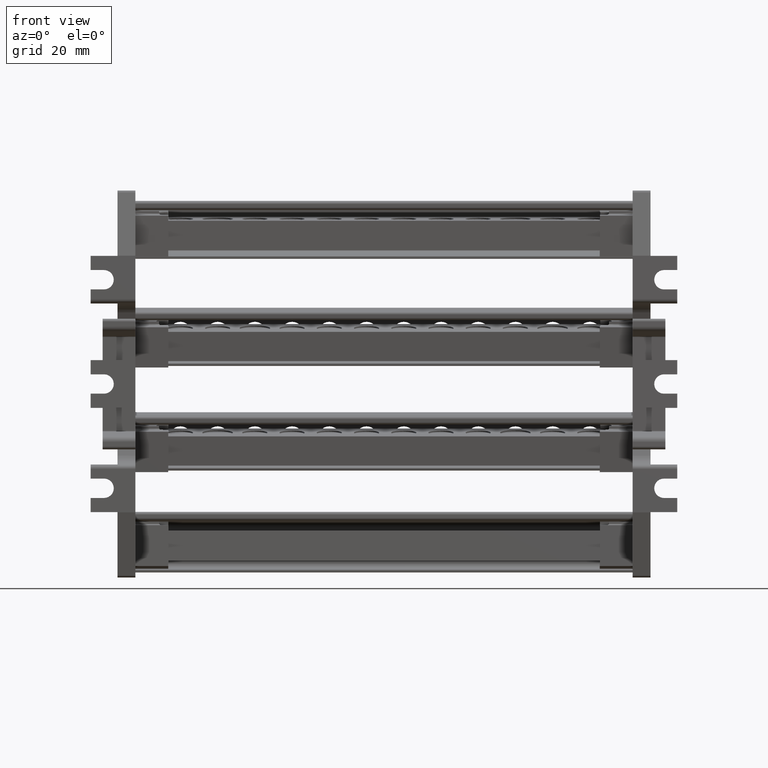
[diagram: clean part render]
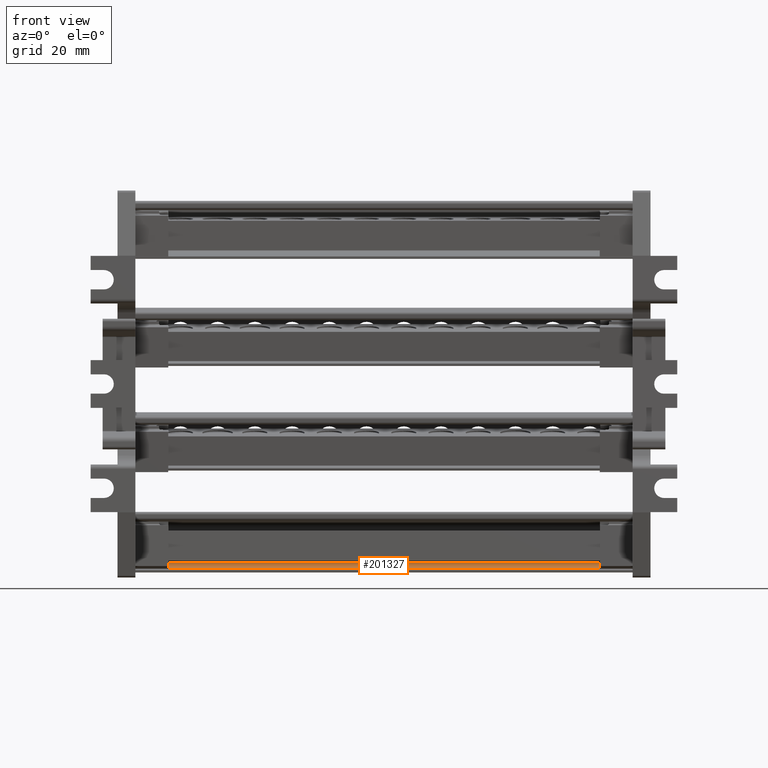
[diagram: same view with one face highlighted and labeled with its STEP entity id]
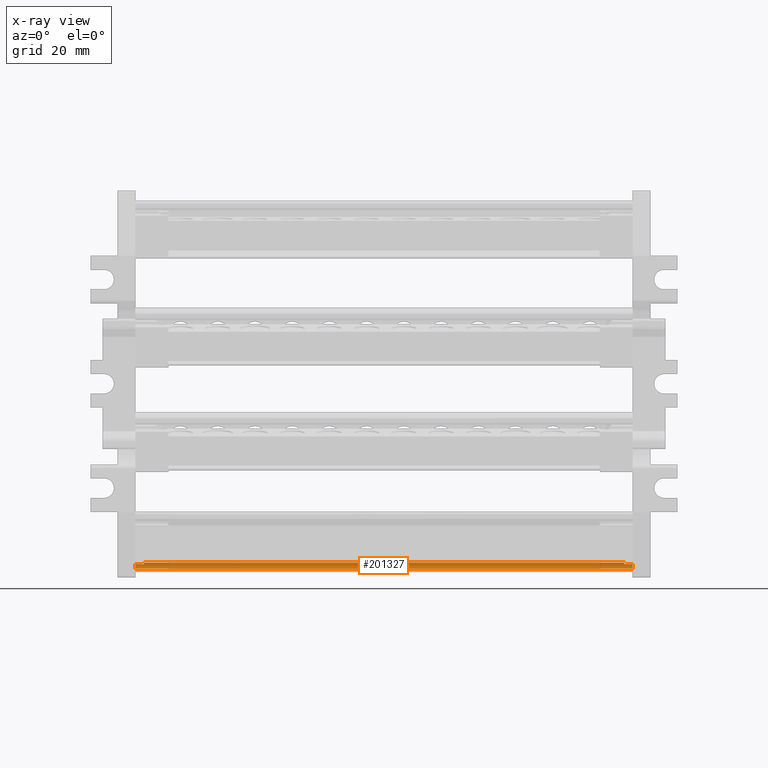
[diagram: x-ray of the same camera — body ghosted, the highlighted face saturated]
A machine part, front view. The second image highlights one B-rep face of the part: STEP entity #201327.
The next image is the same camera in x-ray: the body ghosted, the highlighted face saturated — about 7% of this face is hidden behind the body in this view.
In plain terms, the highlighted cylindrical surface (edge-blend (fillet) strip) has radius 2 mm, axis along (-1, 0, 0).
Its self-contained STEP definition (entity closure, byte-faithful):
#19030 = CARTESIAN_POINT ( 'NONE',  ( -1413.910428931362000, 747.0874281241202700, 2238.399273915222700 ) ) ;
#24715 = VECTOR ( 'NONE', #90162, 1000.000000000000000 ) ;
#28873 = B_SPLINE_CURVE_WITH_KNOTS ( 'NONE', 3,
 ( #90265, #90290, #90244, #90268, #90269, #90277, #90270, #90248, #90279, #90288, #90252, #90280, #90283, #90284, #90261, #90266, #90285, #90291 ),
 .UNSPECIFIED., .F., .F.,
 ( 4, 1, 1, 2, 2, 2, 1, 1, 2, 2, 4 ),
 ( 0.0000000000000000000, 0.1250000000002905200, 0.1875000000003716700, 0.2187500000004750400, 0.2500000000005783700, 0.5000000000011544100, 0.6250000000016424600, 0.6875000000017016400, 0.7187500000014975800, 0.7500000000012935200, 1.000000000000000000 ),
 .UNSPECIFIED. ) ;
#30984 = ORIENTED_EDGE ( 'NONE', *, *, #123603, .F. ) ;
#30988 = ORIENTED_EDGE ( 'NONE', *, *, #117079, .T. ) ;
#31032 = ORIENTED_EDGE ( 'NONE', *, *, #132460, .F. ) ;
#33439 = ORIENTED_EDGE ( 'NONE', *, *, #123554, .F. ) ;
#33445 = ORIENTED_EDGE ( 'NONE', *, *, #134063, .F. ) ;
#33453 = ORIENTED_EDGE ( 'NONE', *, *, #133993, .T. ) ;
#33470 = ORIENTED_EDGE ( 'NONE', *, *, #124579, .F. ) ;
#33499 = ORIENTED_EDGE ( 'NONE', *, *, #117049, .T. ) ;
#37427 = CARTESIAN_POINT ( 'NONE',  ( -1246.910428931360000, 746.1663795030019600, 2237.135086144463900 ) ) ;
#37435 = CARTESIAN_POINT ( 'NONE',  ( -1246.910428931360000, 746.8970117616252100, 2237.901322745360600 ) ) ;
#37438 = CARTESIAN_POINT ( 'NONE',  ( -1246.910428931360000, 746.8706784317532800, 2237.854589273246300 ) ) ;
#37441 = CARTESIAN_POINT ( 'NONE',  ( -1246.910428931359800, 745.8305968602391000, 2236.981490364456000 ) ) ;
#37444 = CARTESIAN_POINT ( 'NONE',  ( -1246.910428931360200, 745.9116811272579100, 2237.013212161851200 ) ) ;
#37448 = CARTESIAN_POINT ( 'NONE',  ( -1246.910428931360200, 745.3922792874884600, 2236.863218074026000 ) ) ;
#37475 = CARTESIAN_POINT ( 'NONE',  ( -1246.910428931360200, 745.6020503011453700, 2236.900955235959800 ) ) ;
#37482 = CARTESIAN_POINT ( 'NONE',  ( -1246.910428931360000, 746.5734116341029700, 2237.444802232160800 ) ) ;
#37486 = CARTESIAN_POINT ( 'NONE',  ( -1246.910428931360000, 745.9899720404166600, 2237.046469127890800 ) ) ;
#37569 = CARTESIAN_POINT ( 'NONE',  ( -1246.910428931359800, 745.8588899151723100, 2236.992090130123900 ) ) ;
#37576 = CARTESIAN_POINT ( 'NONE',  ( -1246.910428931360000, 746.9350236556941800, 2237.972047779016500 ) ) ;
#37578 = CARTESIAN_POINT ( 'NONE',  ( -1246.910428931359800, 746.7230075337976100, 2237.614214111989900 ) ) ;
#37582 = CARTESIAN_POINT ( 'NONE',  ( -1246.910428931359800, 746.3068350398718800, 2237.229930608632500 ) ) ;
#37586 = CARTESIAN_POINT ( 'NONE',  ( -1246.910428931358900, 745.1758897571471600, 2236.859330531043300 ) ) ;
#37598 = CARTESIAN_POINT ( 'NONE',  ( -1246.910428931359500, 747.0133013700123000, 2238.141446635932400 ) ) ;
#37621 = CARTESIAN_POINT ( 'NONE',  ( -1246.910428931360200, 746.8578381845598000, 2237.832763940944000 ) ) ;
#37862 = CARTESIAN_POINT ( 'NONE',  ( -1246.910428931356600, 747.0874281241182200, 2238.399273915218600 ) ) ;
#41412 = CARTESIAN_POINT ( 'NONE',  ( -1246.910428931356600, 747.0874281241182200, 2238.399273915218600 ) ) ;
#41507 = CARTESIAN_POINT ( 'NONE',  ( -1246.910428931360200, 747.0625393448419800, 2238.294143561956400 ) ) ;
#42312 = B_SPLINE_CURVE_WITH_KNOTS ( 'NONE', 3,
 ( #143364, #143386, #143481, #143486 ),
 .UNSPECIFIED., .F., .F.,
 ( 4, 4 ),
 ( 0.0000000000000000000, 1.000000000000000000 ),
 .UNSPECIFIED. ) ;
#42413 = B_SPLINE_CURVE_WITH_KNOTS ( 'NONE', 3,
 ( #143727, #143686, #143638, #143635 ),
 .UNSPECIFIED., .F., .F.,
 ( 4, 4 ),
 ( 0.0000000000000000000, 1.000000000000000000 ),
 .UNSPECIFIED. ) ;
#64445 = CARTESIAN_POINT ( 'NONE',  ( -1413.910428931360900, 745.1758897571472700, 2236.859330531044200 ) ) ;
#67790 = AXIS2_PLACEMENT_3D ( 'NONE', #150394, #150405, #150410 ) ;
#68579 = CARTESIAN_POINT ( 'NONE',  ( -1411.081890418600300, 747.1409875838348900, 2238.859022573721600 ) ) ;
#68655 = CARTESIAN_POINT ( 'NONE',  ( -1411.056915232368500, 747.0874281241200400, 2238.399273915222700 ) ) ;
#68810 = CARTESIAN_POINT ( 'NONE',  ( -1249.738967444120800, 747.1409875838346600, 2238.859022484094100 ) ) ;
#68859 = CARTESIAN_POINT ( 'NONE',  ( -1249.763942630353300, 747.0874281241185600, 2238.399273915218100 ) ) ;
#69120 = CARTESIAN_POINT ( 'NONE',  ( -1246.910428931358900, 745.1758897571471600, 2236.859330531043300 ) ) ;
#81354 = VERTEX_POINT ( 'NONE', #68579 ) ;
#81374 = VERTEX_POINT ( 'NONE', #68655 ) ;
#81386 = VERTEX_POINT ( 'NONE', #68810 ) ;
#81431 = VERTEX_POINT ( 'NONE', #68859 ) ;
#82093 = VERTEX_POINT ( 'NONE', #69120 ) ;
#90112 = LINE ( 'NONE', #90121, #24715 ) ;
#90121 = CARTESIAN_POINT ( 'NONE',  ( -1303.282428931369200, 745.1758897571471600, 2236.859330531044200 ) ) ;
#90162 = DIRECTION ( 'NONE',  ( 1.000000000000000000, 7.616751523954972200E-017, -4.363528579097150700E-015 ) ) ;
#90244 = CARTESIAN_POINT ( 'NONE',  ( -1413.910428931360200, 745.4435869115399100, 2236.876878036836800 ) ) ;
#90248 = CARTESIAN_POINT ( 'NONE',  ( -1413.910428931360700, 746.0205282239288600, 2237.048293812054500 ) ) ;
#90252 = CARTESIAN_POINT ( 'NONE',  ( -1413.910428931360900, 746.6071586449238600, 2237.490179683473800 ) ) ;
#90261 = CARTESIAN_POINT ( 'NONE',  ( -1413.910428931360700, 746.8287084010480600, 2237.785573238510100 ) ) ;
#90265 = CARTESIAN_POINT ( 'NONE',  ( -1413.910428931360900, 745.1758897571472700, 2236.859330531044200 ) ) ;
#90266 = CARTESIAN_POINT ( 'NONE',  ( -1413.910428931361100, 746.9560458019145700, 2237.991739731483900 ) ) ;
#90268 = CARTESIAN_POINT ( 'NONE',  ( -1413.910428931360700, 745.6257657016594700, 2236.917304040185200 ) ) ;
#90269 = CARTESIAN_POINT ( 'NONE',  ( -1413.910428931360500, 745.7029610673198500, 2236.939390461612200 ) ) ;
#90270 = CARTESIAN_POINT ( 'NONE',  ( -1413.910428931360900, 745.7782871198925200, 2236.963073042444200 ) ) ;
#90277 = CARTESIAN_POINT ( 'NONE',  ( -1413.910428931361400, 745.7542288091652800, 2236.955172740659700 ) ) ;
#90279 = CARTESIAN_POINT ( 'NONE',  ( -1413.910428931360900, 746.2179003580568000, 2237.158400846119100 ) ) ;
#90280 = CARTESIAN_POINT ( 'NONE',  ( -1413.910428931360900, 746.7312945188892900, 2237.643681648516600 ) ) ;
#90283 = CARTESIAN_POINT ( 'NONE',  ( -1413.910428931360900, 746.7804541603961800, 2237.713099387732700 ) ) ;
#90284 = CARTESIAN_POINT ( 'NONE',  ( -1413.910428931361100, 746.8123291553258700, 2237.760184810047100 ) ) ;
#90285 = CARTESIAN_POINT ( 'NONE',  ( -1413.910428931361100, 747.0375695095730200, 2238.188670827685700 ) ) ;
#90288 = CARTESIAN_POINT ( 'NONE',  ( -1413.910428931360500, 746.4845906778979300, 2237.373131301655100 ) ) ;
#90290 = CARTESIAN_POINT ( 'NONE',  ( -1413.910428931360900, 745.2839086281594500, 2236.861271142511700 ) ) ;
#90291 = CARTESIAN_POINT ( 'NONE',  ( -1413.910428931362000, 747.0874281241202700, 2238.399273915222700 ) ) ;
#113322 = EDGE_LOOP ( 'NONE', ( #33445, #33453, #31032, #33439, #30988, #33470, #33499, #30984 ) ) ;
#117049 = EDGE_CURVE ( 'NONE', #81354, #81374, #42312, .T. ) ;
#117079 = EDGE_CURVE ( 'NONE', #81431, #81386, #42413, .T. ) ;
#123554 = EDGE_CURVE ( 'NONE', #81431, #132484, #189690, .T. ) ;
#123603 = EDGE_CURVE ( 'NONE', #132592, #81374, #189703, .T. ) ;
#124579 = EDGE_CURVE ( 'NONE', #81354, #81386, #192645, .T. ) ;
#126218 = B_SPLINE_CURVE_WITH_KNOTS ( 'NONE', 3,
 ( #41412, #41507, #37598, #37576, #37435, #37438, #37621, #37578, #37482, #37582, #37427, #37486, #37444, #37569, #37441, #37475, #37448, #37586 ),
 .UNSPECIFIED., .F., .F.,
 ( 4, 1, 1, 2, 2, 2, 1, 1, 2, 2, 4 ),
 ( 0.0000000000000000000, 0.1249999999986498900, 0.1874999999982154600, 0.2187499999980278600, 0.2499999999978402300, 0.4999999999982812600, 0.6249999999985017500, 0.6874999999987320100, 0.7187499999989031000, 0.7499999999990739600, 1.000000000000000000 ),
 .UNSPECIFIED. ) ;
#132460 = EDGE_CURVE ( 'NONE', #132484, #82093, #126218, .T. ) ;
#132484 = VERTEX_POINT ( 'NONE', #37862 ) ;
#132592 = VERTEX_POINT ( 'NONE', #19030 ) ;
#133993 = EDGE_CURVE ( 'NONE', #193852, #82093, #90112, .T. ) ;
#134063 = EDGE_CURVE ( 'NONE', #193852, #132592, #28873, .T. ) ;
#143364 = CARTESIAN_POINT ( 'NONE',  ( -1411.081890418600300, 747.1409875838348900, 2238.859022573721600 ) ) ;
#143386 = CARTESIAN_POINT ( 'NONE',  ( -1411.081888757368200, 747.1409875838353400, 2238.705086964946100 ) ) ;
#143481 = CARTESIAN_POINT ( 'NONE',  ( -1411.073563695290900, 747.1231343665882600, 2238.550443363693800 ) ) ;
#143486 = CARTESIAN_POINT ( 'NONE',  ( -1411.056915232368500, 747.0874281241200400, 2238.399273915222700 ) ) ;
#143635 = CARTESIAN_POINT ( 'NONE',  ( -1249.738967444120800, 747.1409875838346600, 2238.859022484094100 ) ) ;
#143638 = CARTESIAN_POINT ( 'NONE',  ( -1249.738969109641200, 747.1409875746367100, 2238.705086885107900 ) ) ;
#143686 = CARTESIAN_POINT ( 'NONE',  ( -1249.747294171718700, 747.1231343573920200, 2238.550443324760600 ) ) ;
#143727 = CARTESIAN_POINT ( 'NONE',  ( -1249.763942630353300, 747.0874281241185600, 2238.399273915218100 ) ) ;
#150318 = CYLINDRICAL_SURFACE ( 'NONE', #67790, 1.999996576947715700 ) ;
#150356 = FACE_OUTER_BOUND ( 'NONE', #113322, .T. ) ;
#150394 = CARTESIAN_POINT ( 'NONE',  ( -1303.282428931368900, 745.1409910068872500, 2238.859022603596700 ) ) ;
#150405 = DIRECTION ( 'NONE',  ( -1.000000000000000000, 4.318931644915934100E-015, 4.440247168776230600E-015 ) ) ;
#150410 = DIRECTION ( 'NONE',  ( 0.0000000000000000000, 0.0000000000000000000, 1.000000000000000000 ) ) ;
#189685 = CARTESIAN_POINT ( 'NONE',  ( -1303.282428931368900, 747.0874281241187900, 2238.399273915218600 ) ) ;
#189690 = LINE ( 'NONE', #189685, #197042 ) ;
#189693 = DIRECTION ( 'NONE',  ( 1.000000000000000000, -4.318931644915934100E-015, -4.440247168776231400E-015 ) ) ;
#189703 = LINE ( 'NONE', #189707, #197119 ) ;
#189707 = CARTESIAN_POINT ( 'NONE',  ( -1303.282428931368900, 747.0874281241197000, 2238.399273915222200 ) ) ;
#189720 = DIRECTION ( 'NONE',  ( 1.000000000000000000, -4.318931644915934100E-015, -4.440247168776231400E-015 ) ) ;
#192645 = LINE ( 'NONE', #192666, #197376 ) ;
#192666 = CARTESIAN_POINT ( 'NONE',  ( -1303.282428931368900, 747.1409875838348900, 2238.859022603596700 ) ) ;
#192784 = DIRECTION ( 'NONE',  ( 1.000000000000000000, -4.318931644915934100E-015, -4.440247168776231400E-015 ) ) ;
#193852 = VERTEX_POINT ( 'NONE', #64445 ) ;
#197042 = VECTOR ( 'NONE', #189693, 1000.000000000000000 ) ;
#197119 = VECTOR ( 'NONE', #189720, 1000.000000000000000 ) ;
#197376 = VECTOR ( 'NONE', #192784, 1000.000000000000000 ) ;
#201327 = ADVANCED_FACE ( 'NONE', ( #150356 ), #150318, .F. ) ;